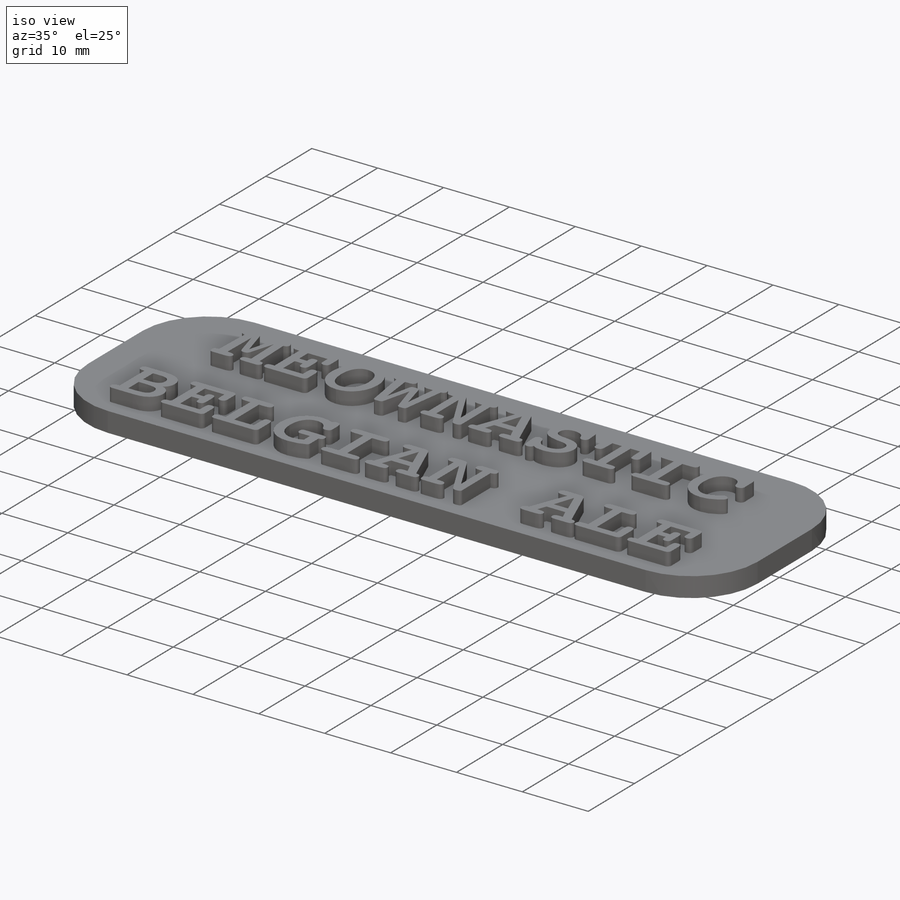
[diagram: iso view]
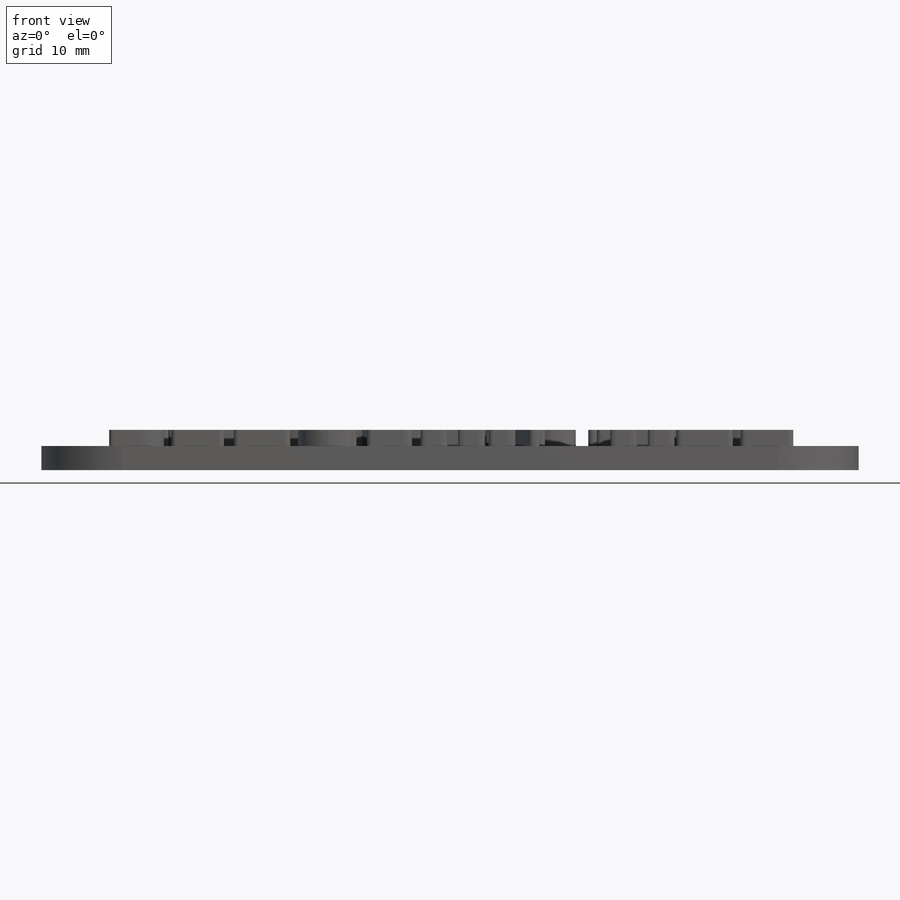
[diagram: front view]
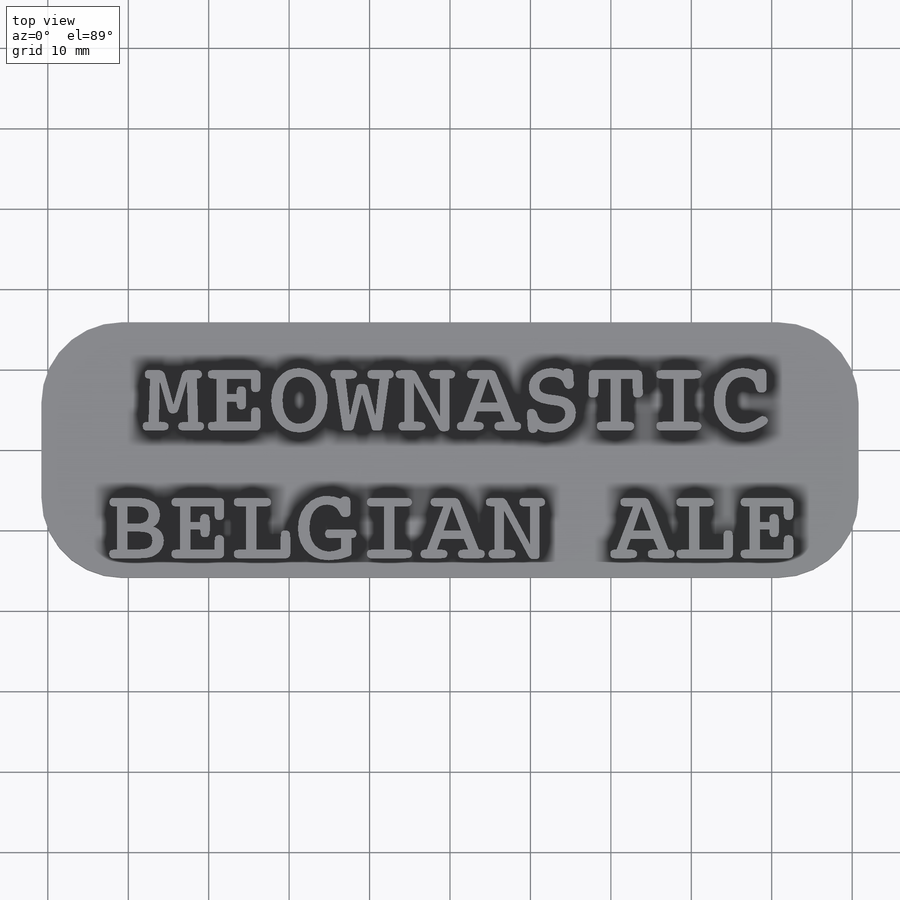
[diagram: top view]
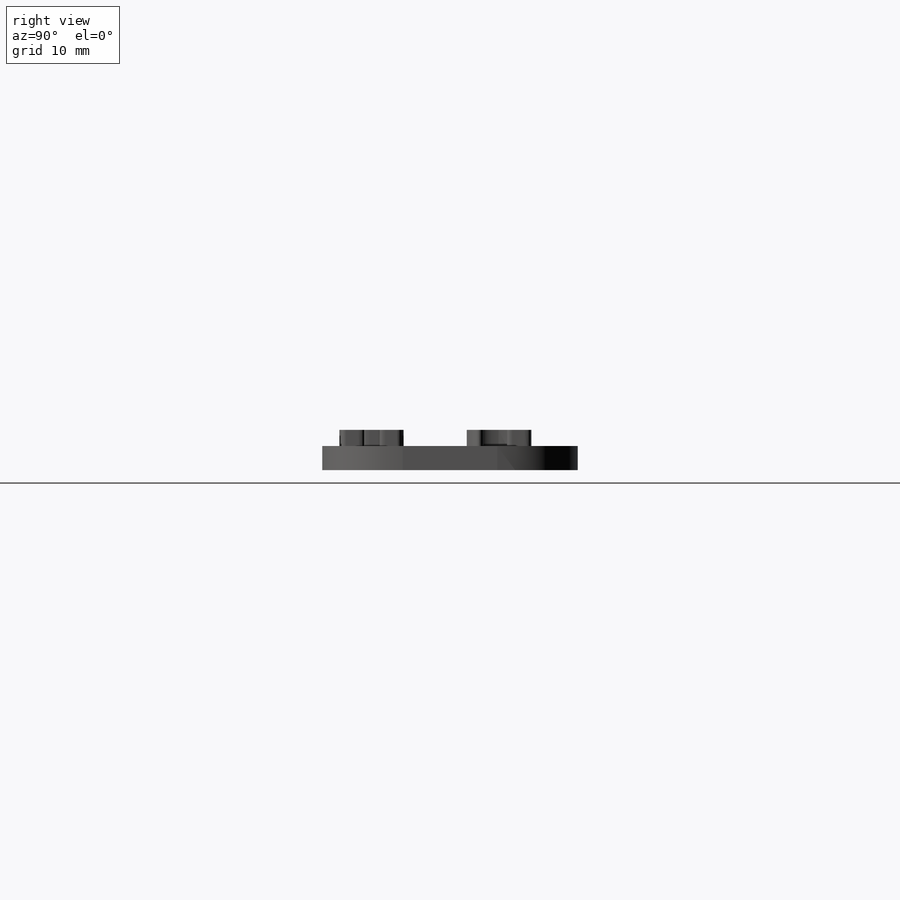
[diagram: right view]
SOLIDWORKS PART (.sldprt)
format: sldprt  version: not decoded by parser v0  size: 906,240 bytes
history: native  units: mm
features: sketch x3, extrude x2, material x1, plane x1, cut_extrude x1 (+13 scaffold rows collapsed)
feature tree (21):
  scaffold x13  (default folders/planes/origin — collapsed)
  material  "Material <not specified>"
  sketch  "Sketch1"  dims[D3=10.0mm D1=101.6mm D2=31.75mm]
  extrude  "Boss-Extrude1"  Depth=3mm
  plane  "Plane1"  Offset=0mm
  sketch  "Sketch2"  dims[D1=13.5mm]
  extrude  "Boss-Extrude2"  Depth=2mm
  sketch  "Sketch3"  dims[D1=2.5mm D2=14.0mm]
  cut_extrude  "Cut-Extrude1"  Depth=2.25mm
decode coverage: 6 of 6 modeling features carry decoded parameters
note: suppression state not decoded; provenance and decode notes live in map.json
